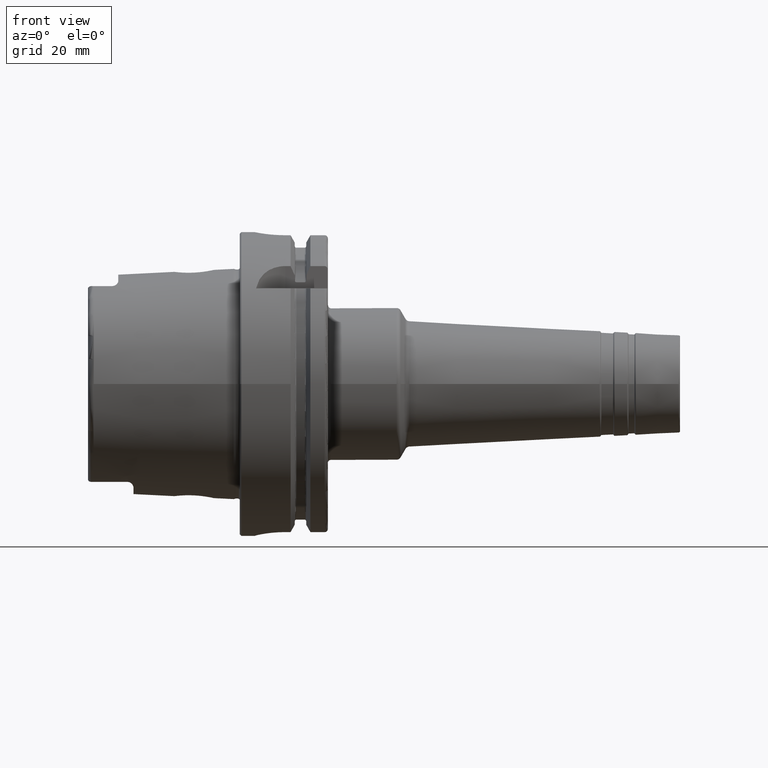
[diagram: clean part render]
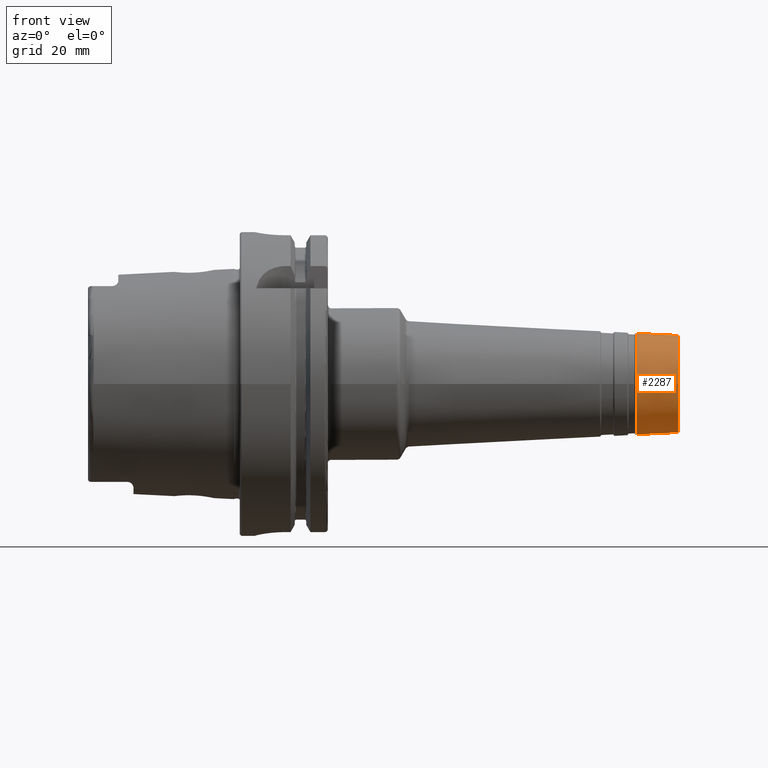
[diagram: same view with one face highlighted and labeled with its STEP entity id]
A machine part, front view. The second image highlights one B-rep face of the part: STEP entity #2287.
In plain terms, the highlighted conical surface has half-angle 3 deg.
Its self-contained STEP definition (entity closure, byte-faithful):
#195=LINE('',#3656,#307);
#307=VECTOR('',#2923,16.3848185972057);
#409=CONICAL_SURFACE('',#2501,16.3848185972057,0.0523598775598299);
#446=FACE_OUTER_BOUND('',#583,.T.);
#583=EDGE_LOOP('',(#1619,#1620,#1621,#1622,#1623,#1624));
#759=CIRCLE('',#2498,16.7575507230413);
#760=CIRCLE('',#2499,16.7575507230413);
#762=CIRCLE('',#2502,16.0248324840198);
#763=CIRCLE('',#2503,16.0248324840198);
#939=VERTEX_POINT('',#3647);
#940=VERTEX_POINT('',#3648);
#941=VERTEX_POINT('',#3653);
#942=VERTEX_POINT('',#3654);
#1197=EDGE_CURVE('',#939,#940,#759,.T.);
#1198=EDGE_CURVE('',#940,#939,#760,.T.);
#1200=EDGE_CURVE('',#941,#942,#762,.T.);
#1201=EDGE_CURVE('',#941,#940,#195,.T.);
#1202=EDGE_CURVE('',#942,#941,#763,.T.);
#1619=ORIENTED_EDGE('',*,*,#1200,.F.);
#1620=ORIENTED_EDGE('',*,*,#1201,.T.);
#1621=ORIENTED_EDGE('',*,*,#1197,.F.);
#1622=ORIENTED_EDGE('',*,*,#1198,.F.);
#1623=ORIENTED_EDGE('',*,*,#1201,.F.);
#1624=ORIENTED_EDGE('',*,*,#1202,.F.);
#2287=ADVANCED_FACE('',(#446),#409,.T.);
#2498=AXIS2_PLACEMENT_3D('',#3649,#2913,#2914);
#2499=AXIS2_PLACEMENT_3D('',#3650,#2915,#2916);
#2501=AXIS2_PLACEMENT_3D('',#3652,#2919,#2920);
#2502=AXIS2_PLACEMENT_3D('',#3655,#2921,#2922);
#2503=AXIS2_PLACEMENT_3D('',#3657,#2924,#2925);
#2913=DIRECTION('center_axis',(-1.,0.,0.));
#2914=DIRECTION('ref_axis',(0.,-1.,3.06161699786838E-17));
#2915=DIRECTION('center_axis',(-1.,0.,0.));
#2916=DIRECTION('ref_axis',(0.,-1.,3.06161699786838E-17));
#2919=DIRECTION('center_axis',(-1.,0.,0.));
#2920=DIRECTION('ref_axis',(0.,1.,0.));
#2921=DIRECTION('center_axis',(1.,0.,0.));
#2922=DIRECTION('ref_axis',(0.,-1.,3.06161699786838E-17));
#2923=DIRECTION('',(-0.998629534754574,-0.0523359562429439,-6.40930612932372E-18));
#2924=DIRECTION('center_axis',(1.,0.,0.));
#2925=DIRECTION('ref_axis',(0.,-1.,3.06161699786838E-17));
#3647=CARTESIAN_POINT('',(130.545071105762,-2.05220808545219E-15,16.7575507230413));
#3648=CARTESIAN_POINT('',(130.545071105762,-16.7575507230413,-2.05220808545219E-15));
#3649=CARTESIAN_POINT('Origin',(130.545071105762,0.,-2.56526010681524E-15));
#3650=CARTESIAN_POINT('Origin',(130.545071105762,0.,-2.56526010681524E-15));
#3652=CARTESIAN_POINT('Origin',(137.657223746739,0.,0.));
#3653=CARTESIAN_POINT('',(144.526167978121,-16.0248324840198,-1.96247598084274E-15));
#3654=CARTESIAN_POINT('',(144.526167978121,-1.96247598084274E-15,16.0248324840198));
#3655=CARTESIAN_POINT('Origin',(144.526167978121,0.,-2.45309497605343E-15));
#3656=CARTESIAN_POINT('',(137.657223746739,-16.3848185972057,-2.0065615649678E-15));
#3657=CARTESIAN_POINT('Origin',(144.526167978121,0.,-2.45309497605343E-15));